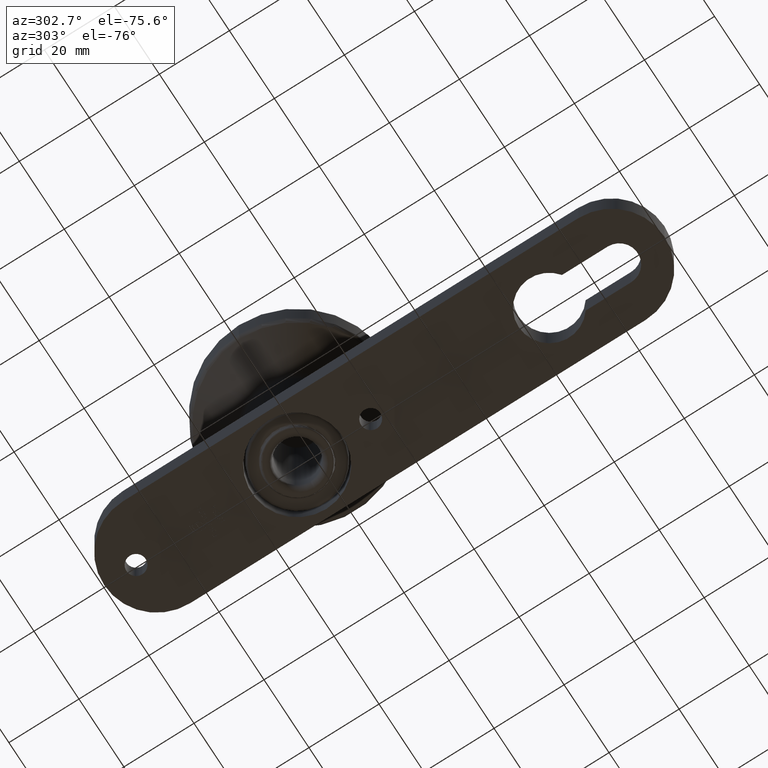
[diagram: clean part render]
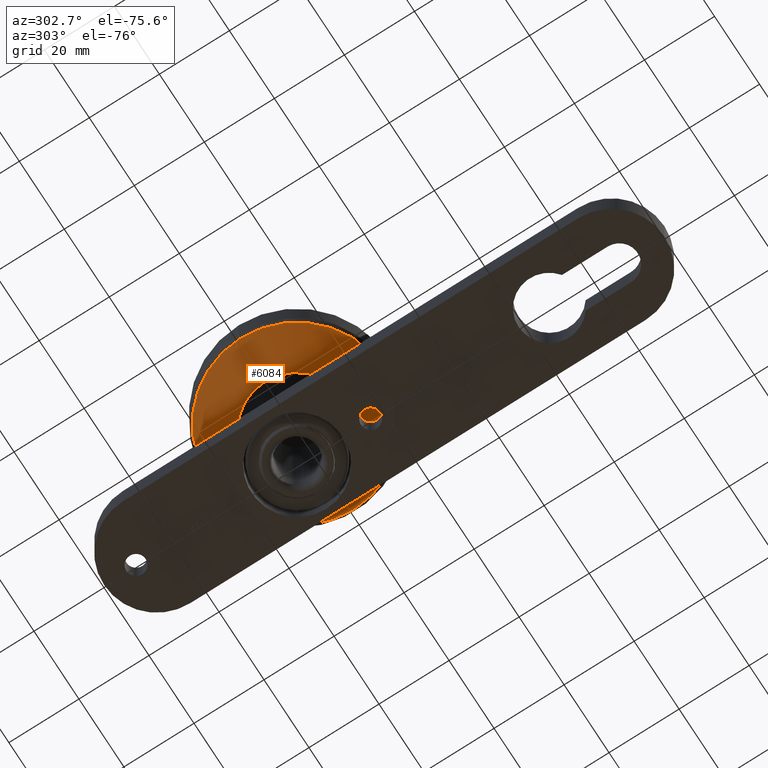
[diagram: same view with one face highlighted and labeled with its STEP entity id]
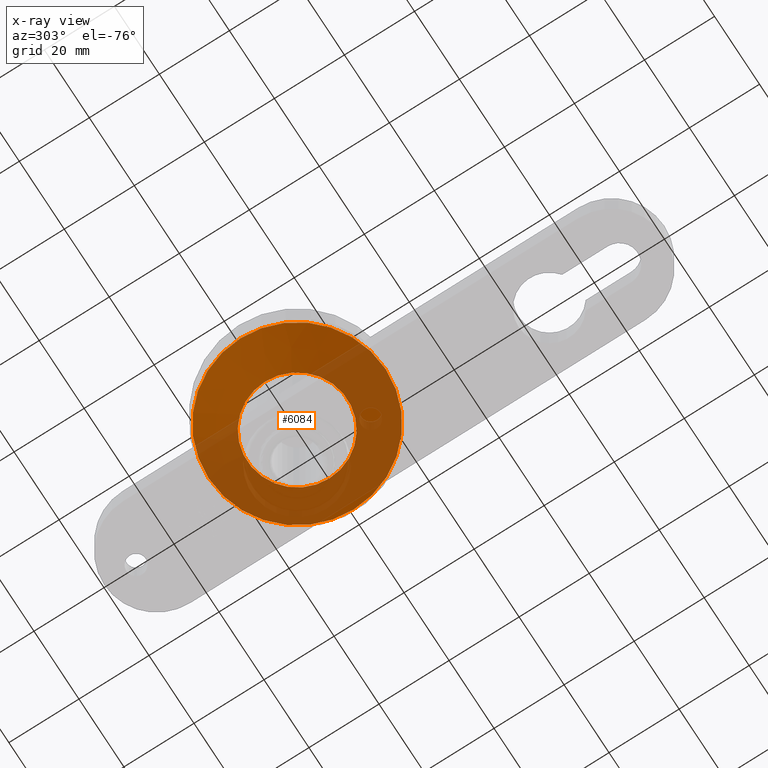
[diagram: x-ray of the same camera — body ghosted, the highlighted face saturated]
A machine part, auxiliary view. The second image highlights one B-rep face of the part: STEP entity #6084.
The next image is the same camera in x-ray: the body ghosted, the highlighted face saturated — about 60% of this face is hidden behind the body in this view.
In plain terms, the highlighted conical surface has half-angle 61.232 deg.
Its self-contained STEP definition (entity closure, byte-faithful):
#45 = DIRECTION ( 'NONE',  ( -0.000000000000000000, -0.000000000000000000, 1.000000000000000000 ) ) ;
#390 = CARTESIAN_POINT ( 'NONE',  ( 14.28748237561456769, -3.469446951953614189E-15, 7.069598167004077283 ) ) ;
#735 = DIRECTION ( 'NONE',  ( -1.000000000000000000, 0.000000000000000000, 0.000000000000000000 ) ) ;
#1066 = DIRECTION ( 'NONE',  ( 1.000000000000000000, 0.000000000000000000, 0.000000000000000000 ) ) ;
#1288 = CIRCLE ( 'NONE', #1312, 14.28748237561456769 ) ;
#1312 = AXIS2_PLACEMENT_3D ( 'NONE', #6037, #10527, #4836 ) ;
#1857 = CARTESIAN_POINT ( 'NONE',  ( 0.000000000000000000, -3.469446951953614189E-15, 6.500000000000005329 ) ) ;
#1963 = VERTEX_POINT ( 'NONE', #390 ) ;
#2781 = FACE_BOUND ( 'NONE', #5275, .T. ) ;
#4836 = DIRECTION ( 'NONE',  ( 1.000000000000000000, 0.000000000000000000, 0.000000000000000000 ) ) ;
#4857 = ORIENTED_EDGE ( 'NONE', *, *, #9915, .T. ) ;
#5164 = EDGE_CURVE ( 'NONE', #1963, #1963, #1288, .T. ) ;
#5275 = EDGE_LOOP ( 'NONE', ( #11070 ) ) ;
#5442 = DIRECTION ( 'NONE',  ( 0.000000000000000000, 0.000000000000000000, -1.000000000000000000 ) ) ;
#5626 = CIRCLE ( 'NONE', #6636, 25.22188821828908090 ) ;
#6037 = CARTESIAN_POINT ( 'NONE',  ( 0.000000000000000000, -3.469446951953614189E-15, 7.069598167004077283 ) ) ;
#6084 = ADVANCED_FACE ( 'NONE', ( #2781, #7510 ), #7070, .T. ) ;
#6537 = CARTESIAN_POINT ( 'NONE',  ( 0.000000000000000000, -3.469446951953614189E-15, 13.07280137474694648 ) ) ;
#6636 = AXIS2_PLACEMENT_3D ( 'NONE', #6537, #5442, #735 ) ;
#7070 = CONICAL_SURFACE ( 'NONE', #10264, 13.25000000000000178, 1.068706127772902859 ) ;
#7510 = FACE_OUTER_BOUND ( 'NONE', #9514, .T. ) ;
#8036 = CARTESIAN_POINT ( 'NONE',  ( -25.22188821828908090, -3.469446951953614189E-15, 13.07280137474694648 ) ) ;
#8466 = VERTEX_POINT ( 'NONE', #8036 ) ;
#9514 = EDGE_LOOP ( 'NONE', ( #4857 ) ) ;
#9915 = EDGE_CURVE ( 'NONE', #8466, #8466, #5626, .T. ) ;
#10264 = AXIS2_PLACEMENT_3D ( 'NONE', #1857, #45, #1066 ) ;
#10527 = DIRECTION ( 'NONE',  ( -0.000000000000000000, -0.000000000000000000, 1.000000000000000000 ) ) ;
#11070 = ORIENTED_EDGE ( 'NONE', *, *, #5164, .T. ) ;